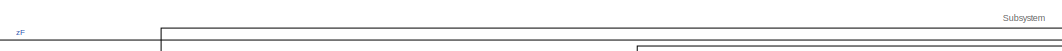
[diagram: root canvas - part 1/5, top center region]
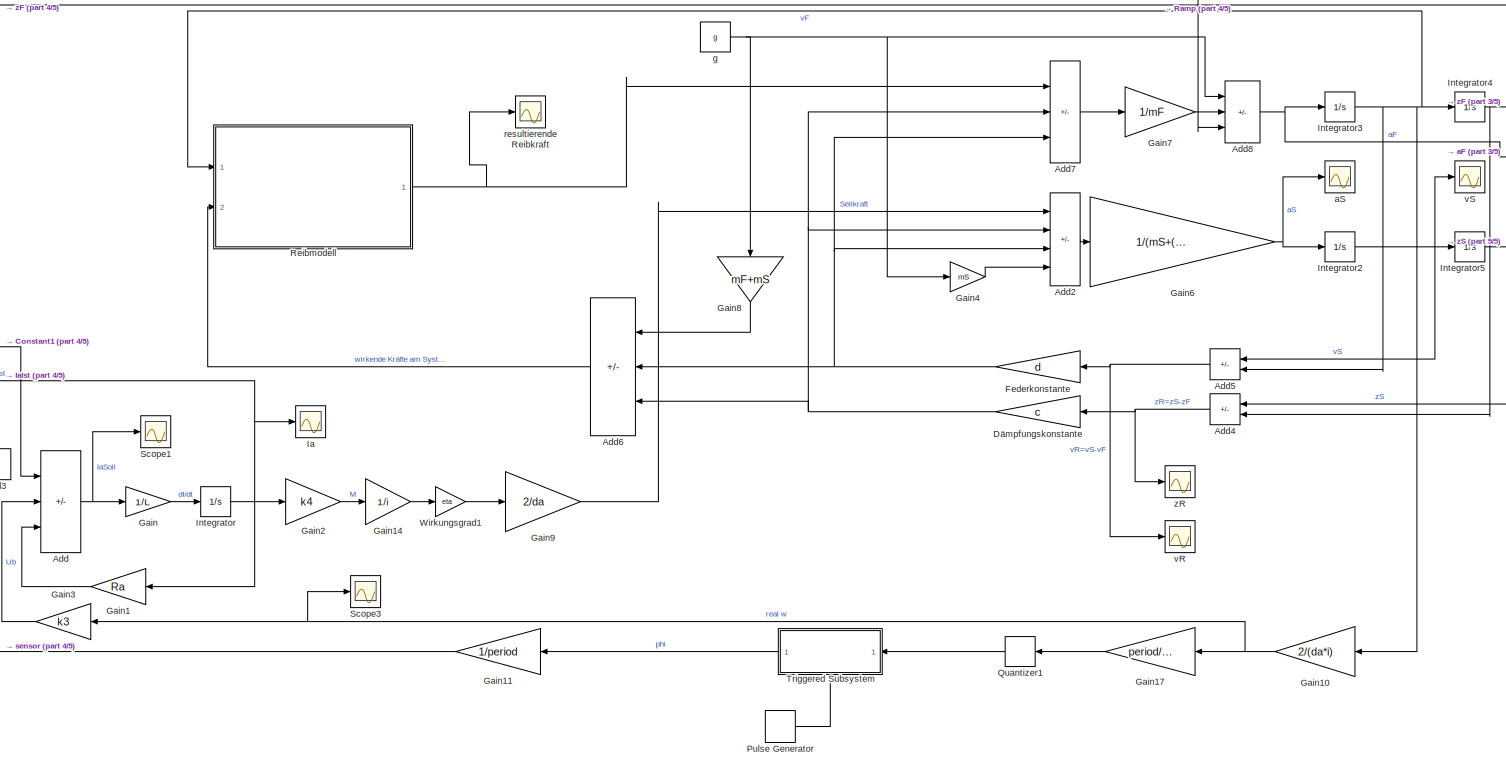
[diagram: root canvas - part 2/5, right side, full height]
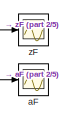
[diagram: root canvas - part 3/5, top right region]
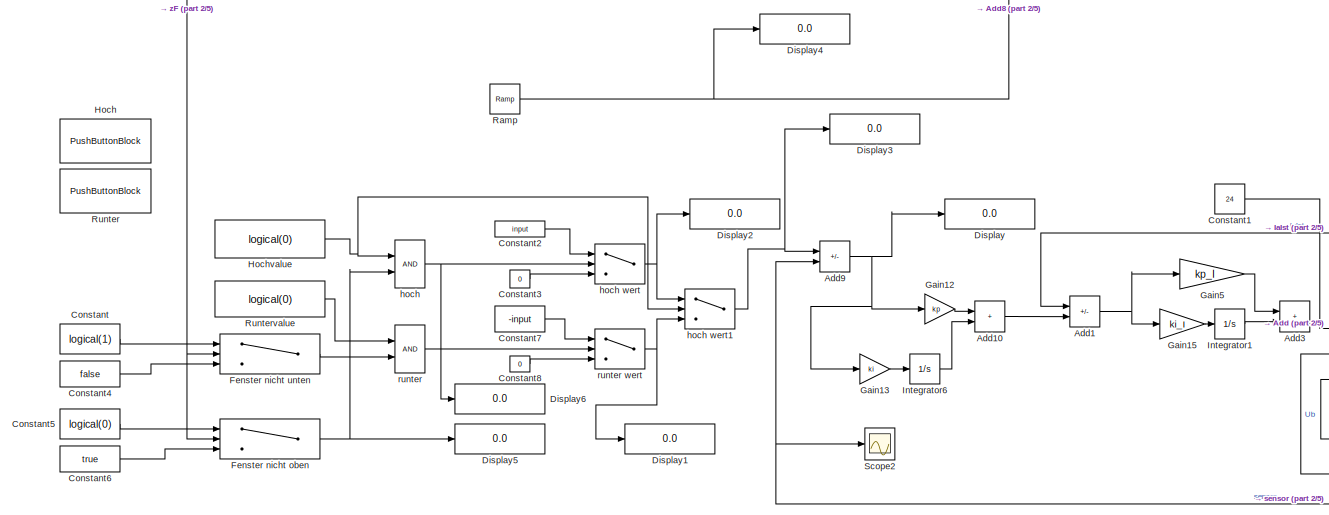
[diagram: root canvas - part 4/5, middle left region]
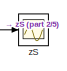
[diagram: root canvas - part 5/5, middle right region]
MODEL slx_23ecbcce1647
KIND model
CONFIG AbsTol = 1e-3
CONFIG EnableMultiTasking = off
CONFIG FixedStep = auto
CONFIG MaxStep = 1
CONFIG MinStep = 1e-3
CONFIG RelTol = 1e-3
CONFIG SampleTimeConstraint = Unconstrained
CONFIG SolverName = ode23s
CONFIG StartTime = 0.0
CONFIG StopTime = 10
BLOCK [Sum] Add
  IconShape = rectangular
  Inputs = +--
  Ports = [3, 1]
BLOCK [Sum] Add1
  Commented = on
  IconShape = rectangular
  Inputs = -+
  Ports = [2, 1]
BLOCK [Sum] Add10
  Commented = on
  IconShape = rectangular
  Ports = [2, 1]
BLOCK [Sum] Add2
  IconShape = rectangular
  Inputs = +---
  Ports = [4, 1]
BLOCK [Sum] Add3
  Commented = on
  IconShape = rectangular
  Ports = [2, 1]
BLOCK [Sum] Add4
  IconShape = rectangular
  Inputs = +-
  NameLocation = top
  Ports = [2, 1]
BLOCK [Sum] Add5
  IconShape = rectangular
  Inputs = +-
  NameLocation = top
  Ports = [2, 1]
BLOCK [Sum] Add6
  IconShape = rectangular
  Inputs = -++
  NameLocation = top
  Ports = [3, 1]
BLOCK [Sum] Add7
  IconShape = rectangular
  Inputs = -++
  Ports = [3, 1]
BLOCK [Sum] Add8
  IconShape = rectangular
  Inputs = -++
  Ports = [3, 1]
BLOCK [Sum] Add9
  Commented = on
  IconShape = rectangular
  Inputs = +-
  Ports = [2, 1]
BLOCK [Constant] Constant
  Commented = on
  Value = logical(1)
BLOCK [Constant] Constant1
  Value = 24
BLOCK [Constant] Constant2
  Commented = on
  Value = input
BLOCK [Constant] Constant3
  Commented = on
  Value = 0
BLOCK [Constant] Constant4
  Commented = on
  Value = false
BLOCK [Constant] Constant5
  Commented = on
  Value = logical(0)
BLOCK [Constant] Constant6
  Commented = on
  Value = true
BLOCK [Constant] Constant7
  Commented = on
  Value = -input
BLOCK [Constant] Constant8
  Commented = on
  Value = 0
BLOCK [Display] Display
  Decimation = 1
  Ports = [1]
BLOCK [Display] Display1
  Commented = on
  Decimation = 1
  Ports = [1]
BLOCK [Display] Display2
  Commented = on
  Decimation = 1
  Ports = [1]
BLOCK [Display] Display3
  Decimation = 1
  Ports = [1]
BLOCK [Display] Display4
  Commented = on
  Decimation = 1
  Ports = [1]
BLOCK [Display] Display5
  Commented = on
  Decimation = 1
  Ports = [1]
BLOCK [Display] Display6
  Commented = on
  Decimation = 1
  Ports = [1]
BLOCK [Gain] Dämpfungskonstante
  Gain = c
  NameLocation = top
BLOCK [Gain] Federkonstante
  Gain = d
  NameLocation = top
BLOCK [Switch] Fenster nicht oben
  Commented = on
  InputSameDT = off
  SaturateOnIntegerOverflow = off
  Threshold = lF
BLOCK [Switch] Fenster nicht unten
  Commented = on
  InputSameDT = off
  SaturateOnIntegerOverflow = off
BLOCK [Gain] Gain
  Gain = 1/L
BLOCK [Gain] Gain1
  Gain = Ra
  NameLocation = top
BLOCK [Gain] Gain10
  Gain = 2/(da*i)
  NameLocation = top
BLOCK [Gain] Gain11
  Commented = on
  Gain = 1/period
  NameLocation = top
BLOCK [Gain] Gain12
  Commented = on
  Gain = kp
BLOCK [Gain] Gain13
  Commented = on
  Gain = ki
BLOCK [Gain] Gain14
  Gain = 1/i
BLOCK [Gain] Gain15
  Commented = on
  Gain = ki_I
BLOCK [Gain] Gain17
  Commented = on
  Gain = period/(2*pi)
  NameLocation = top
BLOCK [Gain] Gain2
  Gain = k4
BLOCK [Gain] Gain3
  Gain = k3
  NameLocation = top
BLOCK [Gain] Gain4
  Gain = mS
BLOCK [Gain] Gain5
  Commented = on
  Gain = kp_I
BLOCK [Gain] Gain6
  Gain = 1/(mS+(4/(da*da))*eta*J*i*i)
BLOCK [Gain] Gain7
  Gain = 1/mF
BLOCK [Gain] Gain8
  Gain = mF+mS
  NameLocation = left
BLOCK [Gain] Gain9
  Gain = 2/da
BLOCK [PushButtonBlock] Hoch
  ButtonText = Hoch
  Commented = on
BLOCK [Constant] Hochvalue
  Commented = on
  Value = logical(0)
BLOCK [Scope] Ia
  Floating = off
  NumInputPorts = 1
  Ports = [1]
  ScopeSpecificationString = Simulink.scopes.TimeScopeBlockCfg('CurrentConfiguration', extmgr.ConfigurationSet(extmgr.Configuration('Core','General UI',true),extmgr.Configuration('Core','Source UI',true),extmgr.Configuration('Sources','WiredSimulink',true,'DataLoggingVariableName','ScopeData1'),extmgr.Configuration('Visuals','Time Domain',true,'SerializedDisplays',{struct('MinYLimReal','-4576.48353','MaxYLimReal','508.49817',...<+1431ch>
BLOCK [Integrator] Integrator
  Ports = [1, 1]
BLOCK [Integrator] Integrator1
  Commented = on
  Ports = [1, 1]
BLOCK [Integrator] Integrator2
  InitialCondition = 1
  Ports = [1, 1]
BLOCK [Integrator] Integrator3
  Ports = [1, 1]
BLOCK [Integrator] Integrator4
  Ports = [1, 1]
BLOCK [Integrator] Integrator5
  Ports = [1, 1]
BLOCK [Integrator] Integrator6
  Commented = on
  Ports = [1, 1]
BLOCK [DiscretePulseGenerator] Pulse Generator
  Period = period
  Ports = [0, 1]
  PulseType = Time based
  PulseWidth = 5
BLOCK [Quantizer] Quantizer1
  Commented = on
  NameLocation = top
  QuantizationInterval = 1/inkr
BLOCK [Reference] Ramp  REF=simulink/Sources/Ramp
  Commented = on
  Ports = [0, 1]
  SourceBlock = simulink/Sources/Ramp
  SourceProductBaseCode = SL
  SourceType = Ramp
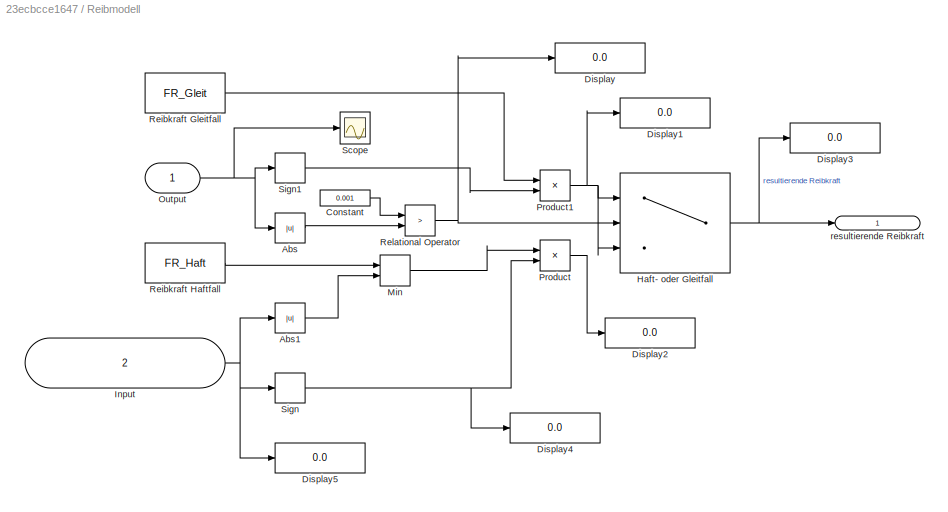
BLOCK [SubSystem] Reibmodell
  Ports = [2, 1]
  RequestExecContextInheritance = off
BLOCK [Abs] Reibmodell/Abs
  SaturateOnIntegerOverflow = off
BLOCK [Abs] Reibmodell/Abs1
  SaturateOnIntegerOverflow = off
BLOCK [Constant] Reibmodell/Constant
  Value = 0.001
BLOCK [Display] Reibmodell/Display
  Decimation = 1
  Ports = [1]
BLOCK [Display] Reibmodell/Display1
  Decimation = 1
  Ports = [1]
BLOCK [Display] Reibmodell/Display2
  Decimation = 1
  Ports = [1]
BLOCK [Display] Reibmodell/Display3
  Decimation = 1
  Ports = [1]
BLOCK [Display] Reibmodell/Display4
  Decimation = 1
  Ports = [1]
BLOCK [Display] Reibmodell/Display5
  Decimation = 1
  Ports = [1]
BLOCK [Switch] Reibmodell/Haft- oder Gleitfall
  InputSameDT = off
  SaturateOnIntegerOverflow = off
  Threshold = 0.1
BLOCK [Inport] Reibmodell/Input
  IconDisplay = Signal name
  Port = 2
BLOCK [MinMax] Reibmodell/Min
  Inputs = 2
  Ports = [2, 1]
BLOCK [Inport] Reibmodell/Output
  IconDisplay = Signal name
BLOCK [Product] Reibmodell/Product
  Ports = [2, 1]
BLOCK [Product] Reibmodell/Product1
  Ports = [2, 1]
BLOCK [Constant] Reibmodell/Reibkraft Gleitfall
  Value = FR_Gleit
BLOCK [Constant] Reibmodell/Reibkraft Haftfall
  Value = FR_Haft
  VectorParams1D = off
BLOCK [RelationalOperator] Reibmodell/Relational Operator
  InputSameDT = off
  Operator = >
  OutDataTypeStr = boolean
  Ports = [2, 1]
  RndMeth = Simplest
BLOCK [Scope] Reibmodell/Scope
  Floating = off
  NumInputPorts = 1
  Ports = [1]
  ScopeSpecificationString = Simulink.scopes.TimeScopeBlockCfg('CurrentConfiguration', extmgr.ConfigurationSet(extmgr.Configuration('Core','General UI',true),extmgr.Configuration('Core','Source UI',true),extmgr.Configuration('Sources','WiredSimulink',true,'DataLoggingVariableName','ScopeData4'),extmgr.Configuration('Visuals','Time Domain',true,'SerializedDisplays',{struct('MinYLimReal','-0.00004','MaxYLimReal','0.00026','YLab...<+1409ch>
BLOCK [Signum] Reibmodell/Sign
BLOCK [Signum] Reibmodell/Sign1
BLOCK [Outport] Reibmodell/resultierende Reibkraft
  IconDisplay = Signal name
BLOCK [PushButtonBlock] Runter
  ButtonText = Runter
  Commented = on
BLOCK [Constant] Runtervalue
  Commented = on
  Value = logical(0)
BLOCK [Scope] Scope1
  Floating = off
  NumInputPorts = 1
  Ports = [1]
  ScopeSpecificationString = Simulink.scopes.TimeScopeBlockCfg('CurrentConfiguration', extmgr.ConfigurationSet(extmgr.Configuration('Core','General UI',true),extmgr.Configuration('Core','Source UI',true),extmgr.Configuration('Sources','WiredSimulink',true,'DataLoggingVariableName','ScopeData1'),extmgr.Configuration('Visuals','Time Domain',true,'SerializedDisplays',{struct('MinYLimReal','-163.7239','MaxYLimReal','70.32673','YL...<+1444ch>
BLOCK [Scope] Scope2
  Commented = on
  Floating = off
  NumInputPorts = 1
  Ports = [1]
  ScopeSpecificationString = Simulink.scopes.TimeScopeBlockCfg('CurrentConfiguration', extmgr.ConfigurationSet(extmgr.Configuration('Core','General UI',true),extmgr.Configuration('Core','Source UI',true),extmgr.Configuration('Sources','WiredSimulink',true,'DataLoggingVariableName','ScopeData2'),extmgr.Configuration('Visuals','Time Domain',true),extmgr.Configuration('Tools','Plot Navigation',true),extmgr.Configuration('Tools',...<+40ch>
BLOCK [Scope] Scope3
  Floating = off
  NumInputPorts = 1
  Ports = [1]
  ScopeSpecificationString = Simulink.scopes.TimeScopeBlockCfg('CurrentConfiguration', extmgr.ConfigurationSet(extmgr.Configuration('Core','General UI',true),extmgr.Configuration('Core','Source UI',true),extmgr.Configuration('Sources','WiredSimulink',true,'DataLoggingVariableName','ScopeData3'),extmgr.Configuration('Visuals','Time Domain',true,'SerializedDisplays',{struct('MinYLimReal','-48899520705575947676906793396703245245...<+3545ch>
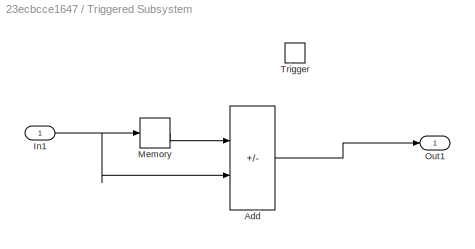
BLOCK [SubSystem] Triggered Subsystem
  Commented = on
  NameLocation = top
  Ports = [1, 1, 0, 1]
  RequestExecContextInheritance = off
  TreatAsAtomicUnit = on
BLOCK [Sum] Triggered Subsystem/Add
  IconShape = rectangular
  Inputs = -+
  Ports = [2, 1]
BLOCK [Inport] Triggered Subsystem/In1
BLOCK [Memory] Triggered Subsystem/Memory
  InheritSampleTime = on
  LinearizeMemory = on
BLOCK [Outport] Triggered Subsystem/Out1
  IconDisplay = Signal name
BLOCK [TriggerPort] Triggered Subsystem/Trigger
  Ports = []
  StatesWhenEnabling = held
  VariantControl = (inherit)
BLOCK [Gain] Wirkungsgrad1
  Gain = eta
BLOCK [Scope] aF
  Floating = off
  NumInputPorts = 1
  Ports = [1]
  ScopeSpecificationString = Simulink.scopes.TimeScopeBlockCfg('CurrentConfiguration', extmgr.ConfigurationSet(extmgr.Configuration('Core','General UI',true),extmgr.Configuration('Core','Source UI',true),extmgr.Configuration('Sources','WiredSimulink',true,'DataLoggingVariableName','ScopeData3'),extmgr.Configuration('Visuals','Time Domain',true,'SerializedDisplays',{struct('MinYLimReal','1.42244','MaxYLimReal','25.58499','YLab...<+1373ch>
BLOCK [Scope] aS
  Floating = off
  NumInputPorts = 1
  Ports = [1]
  ScopeSpecificationString = Simulink.scopes.TimeScopeBlockCfg('CurrentConfiguration', extmgr.ConfigurationSet(extmgr.Configuration('Core','General UI',true),extmgr.Configuration('Core','Source UI',true),extmgr.Configuration('Sources','WiredSimulink',true,'DataLoggingVariableName','ScopeData4'),extmgr.Configuration('Visuals','Time Domain',true,'SerializedDisplays',{struct('MinYLimReal','-70.31505','MaxYLimReal','32.86333','YL...<+1386ch>
BLOCK [Constant] g
  Value = g
BLOCK [Logic] hoch
  AllPortsSameDT = off
  Commented = on
  IconShape = distinctive
  OutDataTypeStr = boolean
  Ports = [2, 1]
BLOCK [Switch] hoch wert
  Commented = on
  InputSameDT = off
  SaturateOnIntegerOverflow = off
  Threshold = 1
BLOCK [Switch] hoch wert1
  Commented = on
  InputSameDT = off
  SaturateOnIntegerOverflow = off
  Threshold = 1
BLOCK [Scope] resultierende Reibkraft
  Floating = off
  NumInputPorts = 1
  Ports = [1]
  ScopeSpecificationString = Simulink.scopes.TimeScopeBlockCfg('CurrentConfiguration', extmgr.ConfigurationSet(extmgr.Configuration('Core','General UI',true),extmgr.Configuration('Core','Source UI',true),extmgr.Configuration('Sources','WiredSimulink',true,'DataLoggingVariableName','ScopeData1'),extmgr.Configuration('Visuals','Time Domain',true,'SerializedDisplays',{struct('MinYLimReal','-34.44437','MaxYLimReal','34.44437','YL...<+1473ch>
BLOCK [Logic] runter
  AllPortsSameDT = off
  Commented = on
  IconShape = distinctive
  OutDataTypeStr = boolean
  Ports = [2, 1]
BLOCK [Switch] runter wert
  Commented = on
  InputSameDT = off
  SaturateOnIntegerOverflow = off
  Threshold = 1
BLOCK [Scope] vR
  Floating = off
  NumInputPorts = 1
  Ports = [1]
  ScopeSpecificationString = Simulink.scopes.TimeScopeBlockCfg('CurrentConfiguration', extmgr.ConfigurationSet(extmgr.Configuration('Core','General UI',true),extmgr.Configuration('Core','Source UI',true),extmgr.Configuration('Sources','WiredSimulink',true,'DataLoggingVariableName','ScopeData3'),extmgr.Configuration('Visuals','Time Domain',true,'SerializedDisplays',{struct('MinYLimReal','-0.51832','MaxYLimReal','0.2342','YLabe...<+1365ch>
BLOCK [Scope] vS
  Floating = off
  NumInputPorts = 1
  Ports = [1]
  ScopeSpecificationString = Simulink.scopes.TimeScopeBlockCfg('CurrentConfiguration', extmgr.ConfigurationSet(extmgr.Configuration('Core','General UI',true),extmgr.Configuration('Core','Source UI',true),extmgr.Configuration('Sources','WiredSimulink',true,'DataLoggingVariableName','ScopeData5'),extmgr.Configuration('Visuals','Time Domain',true,'SerializedDisplays',{struct('MinYLimReal','-1.63346','MaxYLimReal','2.73221','YLab...<+1380ch>
BLOCK [Scope] zF
  Floating = off
  NumInputPorts = 1
  Ports = [1]
  ScopeSpecificationString = Simulink.scopes.TimeScopeBlockCfg('CurrentConfiguration', extmgr.ConfigurationSet(extmgr.Configuration('Core','General UI',true),extmgr.Configuration('Core','Source UI',true),extmgr.Configuration('Sources','WiredSimulink',true),extmgr.Configuration('Visuals','Time Domain',true,'SerializedDisplays',{struct('MinYLimReal','-25179878786574211127691440300418225945579082356771721439866177590000313589218...<+3520ch>
BLOCK [Scope] zR
  Floating = off
  NumInputPorts = 1
  Ports = [1]
  ScopeSpecificationString = Simulink.scopes.TimeScopeBlockCfg('CurrentConfiguration', extmgr.ConfigurationSet(extmgr.Configuration('Core','General UI',true),extmgr.Configuration('Core','Source UI',true),extmgr.Configuration('Sources','WiredSimulink',true,'DataLoggingVariableName','ScopeData2'),extmgr.Configuration('Visuals','Time Domain',true,'SerializedDisplays',{struct('MinYLimReal','-0.00529232500017','MaxYLimReal','-0.00...<+1489ch>
BLOCK [Scope] zS
  Floating = off
  NumInputPorts = 1
  Ports = [1]
  ScopeSpecificationString = Simulink.scopes.TimeScopeBlockCfg('CurrentConfiguration', extmgr.ConfigurationSet(extmgr.Configuration('Core','General UI',true),extmgr.Configuration('Core','Source UI',true),extmgr.Configuration('Sources','WiredSimulink',true,'DataLoggingVariableName','ScopeData1'),extmgr.Configuration('Visuals','Time Domain',true,'SerializedDisplays',{struct('MinYLimReal','-0.00505','MaxYLimReal','0.04546','YLab...<+1361ch>
ANNOTATION (root): Subsystem
LINE Add10:1 -> Add1:2
NET Add1:1 -> Gain15:1, Gain5:1
LINE Add2:1 -> Gain6:1
NET Add4:1 -> Dämpfungskonstante:1, zR:1
NET Add5:1 -> Federkonstante:1, vR:1
LINE Add6:1 -> Reibmodell:2
LINE Add7:1 -> Gain7:1
NET Add8:1 -> Integrator3:1, aF:1
NET Add9:1 -> Display:1, Gain12:1, Gain13:1
NET Add:1 -> Gain:1, Scope1:1
LINE Constant1:1 -> Add:1
LINE Constant2:1 -> hoch wert:1
LINE Constant3:1 -> hoch wert:3
LINE Constant4:1 -> Fenster nicht unten:3
LINE Constant5:1 -> Fenster nicht oben:1
LINE Constant6:1 -> Fenster nicht oben:3
LINE Constant7:1 -> runter wert:1
LINE Constant8:1 -> runter wert:3
LINE Constant:1 -> Fenster nicht unten:1
NET Dämpfungskonstante:1 -> Add2:2, Add6:3, Add7:2
NET Federkonstante:1 -> Add2:3, Add6:2, Add7:3
NET Fenster nicht oben:1 -> Display5:1, hoch:2
LINE Fenster nicht unten:1 -> runter:2
NET Gain10:1 -> Gain17:1, Gain3:1, Scope3:1
NET Gain11:1 -> Add9:2, Scope2:1
LINE Gain12:1 -> Add10:1
LINE Gain13:1 -> Integrator6:1
LINE Gain14:1 -> Wirkungsgrad1:1
LINE Gain15:1 -> Integrator1:1
LINE Gain17:1 -> Quantizer1:1
LINE Gain1:1 -> Add:3
LINE Gain2:1 -> Gain14:1
LINE Gain3:1 -> Add:2
LINE Gain4:1 -> Add2:4
LINE Gain5:1 -> Add3:1
NET Gain6:1 -> Integrator2:1, aS:1
LINE Gain7:1 -> Add8:2
LINE Gain8:1 -> Add6:1
LINE Gain9:1 -> Add2:1
LINE Gain:1 -> Integrator:1
NET Hochvalue:1 -> hoch wert1:2, hoch:1
LINE Integrator1:1 -> Add3:2
NET Integrator2:1 -> Add5:1, Integrator5:1, vS:1
NET Integrator3:1 -> Add5:2, Gain10:1, Integrator4:1, Reibmodell:1
NET Integrator4:1 -> Add4:2, Fenster nicht oben:2, Fenster nicht unten:2, zF:1
NET Integrator5:1 -> Add4:1, zS:1
LINE Integrator6:1 -> Add10:2
NET Integrator:1 -> Add1:1, Gain1:1, Gain2:1, Ia:1
LINE Pulse Generator:1 -> Triggered Subsystem:trigger
LINE Quantizer1:1 -> Triggered Subsystem:1
NET Ramp:1 -> Add8:3, Display4:1
LINE Reibmodell/Abs1:1 -> Reibmodell/Min:2
LINE Reibmodell/Abs:1 -> Reibmodell/Relational Operator:2
LINE Reibmodell/Constant:1 -> Reibmodell/Relational Operator:1
NET Reibmodell/Haft- oder Gleitfall:1 -> Reibmodell/Display3:1, Reibmodell/resultierende Reibkraft:1
NET Reibmodell/Input:1 -> Reibmodell/Abs1:1, Reibmodell/Display5:1, Reibmodell/Sign:1
LINE Reibmodell/Min:1 -> Reibmodell/Product:1
NET Reibmodell/Output:1 -> Reibmodell/Abs:1, Reibmodell/Scope:1, Reibmodell/Sign1:1
NET Reibmodell/Product1:1 -> Reibmodell/Display1:1, Reibmodell/Haft- oder Gleitfall:1, Reibmodell/Haft- oder Gleitfall:3
LINE Reibmodell/Product:1 -> Reibmodell/Display2:1
LINE Reibmodell/Reibkraft Gleitfall:1 -> Reibmodell/Product1:1
LINE Reibmodell/Reibkraft Haftfall:1 -> Reibmodell/Min:1
NET Reibmodell/Relational Operator:1 -> Reibmodell/Display:1, Reibmodell/Haft- oder Gleitfall:2
LINE Reibmodell/Sign1:1 -> Reibmodell/Product1:2
NET Reibmodell/Sign:1 -> Reibmodell/Display4:1, Reibmodell/Product:2
NET Reibmodell:1 -> Add7:1, resultierende Reibkraft:1
LINE Runtervalue:1 -> runter:1
LINE Triggered Subsystem/Add:1 -> Triggered Subsystem/Out1:1
NET Triggered Subsystem/In1:1 -> Triggered Subsystem/Add:2, Triggered Subsystem/Memory:1
LINE Triggered Subsystem/Memory:1 -> Triggered Subsystem/Add:1
LINE Triggered Subsystem:1 -> Gain11:1
LINE Wirkungsgrad1:1 -> Gain9:1
NET g:1 -> Add8:1, Gain4:1, Gain8:1
NET hoch wert1:1 -> Add9:1, Display3:1
NET hoch wert:1 -> Display2:1, hoch wert1:1
NET hoch:1 -> Display6:1, hoch wert:2
NET runter wert:1 -> Display1:1, hoch wert1:3
LINE runter:1 -> runter wert:2
note: NET lines group one-source signal fan-out (src -> all destinations, sorted); 1:1 wires keep LINE
